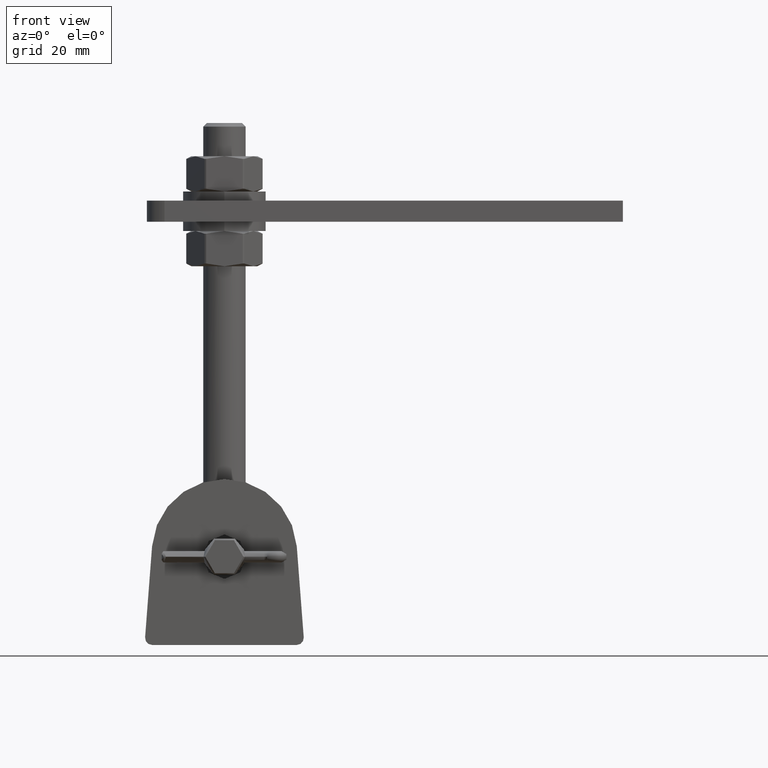
[diagram: clean part render]
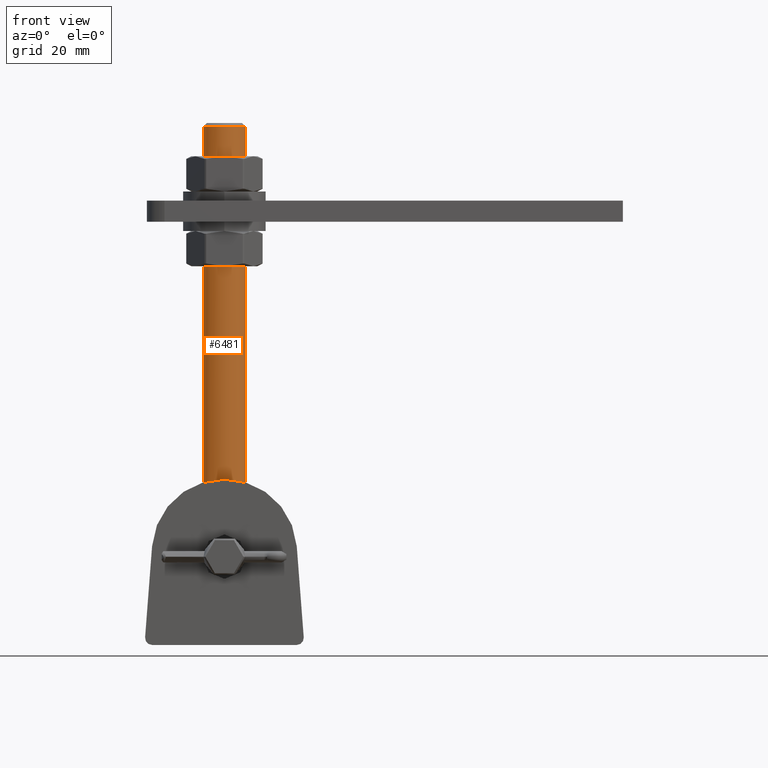
[diagram: same view with one face highlighted and labeled with its STEP entity id]
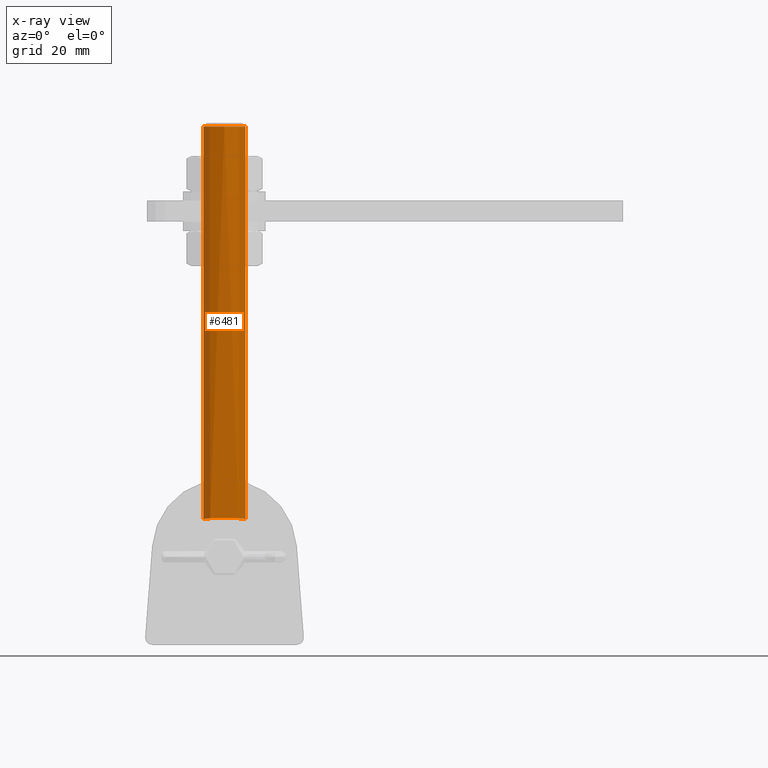
[diagram: x-ray of the same camera — body ghosted, the highlighted face saturated]
A machine part, front view. The second image highlights one B-rep face of the part: STEP entity #6481.
The next image is the same camera in x-ray: the body ghosted, the highlighted face saturated — about 0% of this face is hidden behind the body in this view.
In plain terms, the highlighted cylindrical surface (edge-blend (fillet) strip) has radius 6 mm, axis along (0, 0, 1).
Its self-contained STEP definition (entity closure, byte-faithful):
#291 = ORIENTED_EDGE ( 'NONE', *, *, #9379, .F. ) ;
#363 = CARTESIAN_POINT ( 'NONE',  ( 2.858821212209466722, -5.287978148206013529, 11.13790717393063368 ) ) ;
#403 = EDGE_LOOP ( 'NONE', ( #291, #6014, #16525, #11599, #5409, #16500 ) ) ;
#528 = CARTESIAN_POINT ( 'NONE',  ( -2.012580999801430348, -5.655439151399827225, 11.26503828030744003 ) ) ;
#1176 = CARTESIAN_POINT ( 'NONE',  ( -5.320805270491195671, -2.803786553584363794, 10.58888832320021578 ) ) ;
#1276 = CARTESIAN_POINT ( 'NONE',  ( -4.052886311050992951, -4.424264068711935671, 10.88812013131244250 ) ) ;
#1387 = CARTESIAN_POINT ( 'NONE',  ( -5.113892609555589885, -3.165551226991906386, 10.63463681237543490 ) ) ;
#1669 = CARTESIAN_POINT ( 'NONE',  ( 4.052886311050992951, -4.424264068711936559, 10.88812013131244250 ) ) ;
#1787 = AXIS2_PLACEMENT_3D ( 'NONE', #6663, #4069, #15871 ) ;
#1895 = CARTESIAN_POINT ( 'NONE',  ( 0.7462299686877014171, -5.964967488170382026, 11.37927680154506938 ) ) ;
#2205 = CARTESIAN_POINT ( 'NONE',  ( 4.052886311050992951, -4.424264068711936559, 10.88812013131244250 ) ) ;
#3123 = CARTESIAN_POINT ( 'NONE',  ( -0.3796113927450947001, -5.999783608508001187, 11.39277409428020249 ) ) ;
#3185 = CARTESIAN_POINT ( 'NONE',  ( -2.531332130870001418, -5.452545712510437070, 11.19371147073174555 ) ) ;
#3246 = VECTOR ( 'NONE', #15619, 1000.000000000000000 ) ;
#3570 = CARTESIAN_POINT ( 'NONE',  ( 0.000000000000000000, 0.000000000000000000, 121.9999999999999716 ) ) ;
#3618 = CARTESIAN_POINT ( 'NONE',  ( 4.052886311050992951, -4.424264068711936559, 10.88812013131244250 ) ) ;
#4041 = CARTESIAN_POINT ( 'NONE',  ( 4.627827666096721693, -3.841232835528111345, 10.74998376141880563 ) ) ;
#4069 = DIRECTION ( 'NONE',  ( 0.000000000000000000, 0.000000000000000000, 1.000000000000000000 ) ) ;
#4141 = VERTEX_POINT ( 'NONE', #4438 ) ;
#4289 = CARTESIAN_POINT ( 'NONE',  ( 2.529761871127969908, -5.453326830613871579, 11.19397621253575537 ) ) ;
#4438 = CARTESIAN_POINT ( 'NONE',  ( 6.000000000000000888, 1.467973360395179333E-15, 10.68000468164690986 ) ) ;
#4507 = CARTESIAN_POINT ( 'NONE',  ( -1.476250885711055227, -5.818538449842840521, 11.32438030361830528 ) ) ;
#4737 = EDGE_CURVE ( 'NONE', #9245, #10397, #6972, .T. ) ;
#5100 = EDGE_CURVE ( 'NONE', #4141, #9245, #9860, .T. ) ;
#5152 = CARTESIAN_POINT ( 'NONE',  ( 5.827327076651748428, -1.444365787012909852, 10.54007396654651885 ) ) ;
#5202 = CARTESIAN_POINT ( 'NONE',  ( 6.000000000000000888, 1.467973360395179333E-15, 10.68000468164690986 ) ) ;
#5239 = FACE_OUTER_BOUND ( 'NONE', #403, .T. ) ;
#5333 = CARTESIAN_POINT ( 'NONE',  ( -6.000000000000001776, -0.4156141846890128999, 10.61190313629312953 ) ) ;
#5409 = ORIENTED_EDGE ( 'NONE', *, *, #5100, .T. ) ;
#5846 = CARTESIAN_POINT ( 'NONE',  ( 3.483947210739344325, -4.898743048177221837, 11.01677587378063272 ) ) ;
#6014 = ORIENTED_EDGE ( 'NONE', *, *, #14653, .T. ) ;
#6172 = EDGE_CURVE ( 'NONE', #11524, #4141, #16032, .T. ) ;
#6309 = VECTOR ( 'NONE', #14989, 1000.000000000000000 ) ;
#6475 = CARTESIAN_POINT ( 'NONE',  ( -4.628785364432085991, -3.840176850458395297, 10.74974455852678545 ) ) ;
#6481 = ADVANCED_FACE ( 'NONE', ( #5239 ), #15446, .T. ) ;
#6651 = CARTESIAN_POINT ( 'NONE',  ( -5.656117928453781474, -2.044631444532507114, 10.53687720132760219 ) ) ;
#6663 = CARTESIAN_POINT ( 'NONE',  ( 0.000000000000000000, 0.000000000000000000, -12.25200000000001310 ) ) ;
#6972 = CIRCLE ( 'NONE', #8455, 6.000000000000000888 ) ;
#6979 = CARTESIAN_POINT ( 'NONE',  ( 6.000000000000000888, 0.000000000000000000, -12.25200000000001310 ) ) ;
#7081 = CARTESIAN_POINT ( 'NONE',  ( -1.295692928219341233, -5.861356523483544301, 11.34034151027511506 ) ) ;
#7092 = VERTEX_POINT ( 'NONE', #7122 ) ;
#7122 = CARTESIAN_POINT ( 'NONE',  ( -4.052886311050992951, -4.424264068711935671, 10.88812013131244250 ) ) ;
#7236 = B_SPLINE_CURVE_WITH_KNOTS ( 'NONE', 3,
 ( #10689, #12022, #14981, #15038, #3185, #528, #16387, #4507, #7081, #13826, #3123, #9692, #1895, #12315, #12365, #12472, #16277, #4289, #363, #5846, #9637, #1669 ),
 .UNSPECIFIED., .F., .F.,
 ( 4, 2, 2, 2, 2, 2, 2, 2, 2, 2, 4 ),
 ( 0.004980285782389770252, 0.006095971185357389535, 0.007211656588325007951, 0.007769499289808817592, 0.008327341991292626366, 0.009443027394260249119, 0.01055871279722786840, 0.01111655549871167978, 0.01167439820019548768, 0.01279008360316310697, 0.01390576900613072625 ),
 .UNSPECIFIED. ) ;
#7397 = DIRECTION ( 'NONE',  ( 0.000000000000000000, 0.000000000000000000, -1.000000000000000000 ) ) ;
#7477 = CARTESIAN_POINT ( 'NONE',  ( -6.000000000000000888, 1.734723475976807094E-15, 10.68000468164691164 ) ) ;
#7777 = CARTESIAN_POINT ( 'NONE',  ( -5.957273684027326155, -0.8267433984706858974, 10.56872820745302377 ) ) ;
#7825 = CARTESIAN_POINT ( 'NONE',  ( 4.991058584148644783, -3.336509982085101633, 10.66377732103750198 ) ) ;
#8455 = AXIS2_PLACEMENT_3D ( 'NONE', #3570, #7397, #14146 ) ;
#9158 = CARTESIAN_POINT ( 'NONE',  ( 5.104539526940245153, -3.160161009540882304, 10.63766113593890417 ) ) ;
#9198 = EDGE_CURVE ( 'NONE', #7092, #11524, #7236, .T. ) ;
#9220 = CARTESIAN_POINT ( 'NONE',  ( 5.772833427210424695, -1.648561231873405308, 10.53687368371288180 ) ) ;
#9245 = VERTEX_POINT ( 'NONE', #15385 ) ;
#9379 = EDGE_CURVE ( 'NONE', #11220, #10397, #14854, .T. ) ;
#9536 = CARTESIAN_POINT ( 'NONE',  ( -6.000000000000000888, 7.347880794884120722E-16, 121.9999999999999716 ) ) ;
#9637 = CARTESIAN_POINT ( 'NONE',  ( 3.781845092049720858, -4.672553779533977547, 10.95116229065379265 ) ) ;
#9692 = CARTESIAN_POINT ( 'NONE',  ( 0.3727398869709601659, -6.000214424092193966, 11.39293943636848105 ) ) ;
#9860 = LINE ( 'NONE', #6979, #6309 ) ;
#10397 = VERTEX_POINT ( 'NONE', #9536 ) ;
#10689 = CARTESIAN_POINT ( 'NONE',  ( -4.052886311050992951, -4.424264068711935671, 10.88812013131244250 ) ) ;
#11220 = VERTEX_POINT ( 'NONE', #7477 ) ;
#11492 = CARTESIAN_POINT ( 'NONE',  ( 5.310402471045697403, -2.800458352454029853, 10.59391273257077337 ) ) ;
#11520 = CARTESIAN_POINT ( 'NONE',  ( -6.000000000000000888, 7.347880794884120722E-16, -12.25200000000001310 ) ) ;
#11524 = VERTEX_POINT ( 'NONE', #3618 ) ;
#11599 = ORIENTED_EDGE ( 'NONE', *, *, #6172, .T. ) ;
#12022 = CARTESIAN_POINT ( 'NONE',  ( -3.781344950840408448, -4.673011938321366188, 10.95127861975652372 ) ) ;
#12315 = CARTESIAN_POINT ( 'NONE',  ( 1.293218280457317348, -5.861911851466667933, 11.34054880119874298 ) ) ;
#12365 = CARTESIAN_POINT ( 'NONE',  ( 1.473853799219136951, -5.819141181988702449, 11.32460367283993641 ) ) ;
#12472 = CARTESIAN_POINT ( 'NONE',  ( 1.831735866427572690, -5.716589265727630043, 11.28709110904715196 ) ) ;
#13060 = CARTESIAN_POINT ( 'NONE',  ( -6.000000000000000888, 1.734723475976807094E-15, 10.68000468164691164 ) ) ;
#13100 = CARTESIAN_POINT ( 'NONE',  ( 6.000000000000003553, -0.4159779150605588671, 10.61184353630519261 ) ) ;
#13154 = CARTESIAN_POINT ( 'NONE',  ( 5.403592857062914590, -2.616076296649992639, 10.57608202782594020 ) ) ;
#13826 = CARTESIAN_POINT ( 'NONE',  ( -0.7495767706160291199, -5.964513098605422670, 11.37910327557075263 ) ) ;
#14146 = DIRECTION ( 'NONE',  ( 1.000000000000000000, 0.000000000000000000, 0.000000000000000000 ) ) ;
#14239 = CARTESIAN_POINT ( 'NONE',  ( 4.355415515859348830, -4.147129509422868843, 10.81775410209660571 ) ) ;
#14631 = CARTESIAN_POINT ( 'NONE',  ( -5.786468881786184681, -1.639936667508688162, 10.53084344153300833 ) ) ;
#14653 = EDGE_CURVE ( 'NONE', #11220, #7092, #16064, .T. ) ;
#14670 = CARTESIAN_POINT ( 'NONE',  ( 5.957205704254485035, -0.8291162385853740879, 10.56838410182564481 ) ) ;
#14854 = LINE ( 'NONE', #11520, #3246 ) ;
#14981 = CARTESIAN_POINT ( 'NONE',  ( -3.483565745634146893, -4.898959578845441420, 11.01684574927956639 ) ) ;
#14989 = DIRECTION ( 'NONE',  ( 0.000000000000000000, 0.000000000000000000, 1.000000000000000000 ) ) ;
#15038 = CARTESIAN_POINT ( 'NONE',  ( -2.859696389336796152, -5.287454190830516154, 11.13774162815434288 ) ) ;
#15385 = CARTESIAN_POINT ( 'NONE',  ( 6.000000000000000888, 0.000000000000000000, 121.9999999999999716 ) ) ;
#15446 = CYLINDRICAL_SURFACE ( 'NONE', #1787, 6.000000000000000888 ) ;
#15619 = DIRECTION ( 'NONE',  ( 0.000000000000000000, 0.000000000000000000, 1.000000000000000000 ) ) ;
#15852 = CARTESIAN_POINT ( 'NONE',  ( 5.570718808316721393, -2.238249966706488792, 10.55008912204307592 ) ) ;
#15871 = DIRECTION ( 'NONE',  ( 1.000000000000000000, 0.000000000000000000, 0.000000000000000000 ) ) ;
#15972 = CARTESIAN_POINT ( 'NONE',  ( 5.644654850823313197, -2.044805988017164733, 10.54192556694422400 ) ) ;
#15985 = CARTESIAN_POINT ( 'NONE',  ( -4.355906172907242357, -4.146680038685603087, 10.81763997893884621 ) ) ;
#16032 = B_SPLINE_CURVE_WITH_KNOTS ( 'NONE', 3,
 ( #2205, #14239, #4041, #7825, #9158, #11492, #13154, #15852, #15972, #9220, #5152, #14670, #13100, #5202 ),
 .UNSPECIFIED., .F., .F.,
 ( 4, 2, 2, 2, 2, 2, 4 ),
 ( 0.01390576900613072625, 0.01515106822305352548, 0.01577371783151492596, 0.01639636743997632470, 0.01701901704843772345, 0.01764166665689912566, 0.01888696587382192316 ),
 .UNSPECIFIED. ) ;
#16064 = B_SPLINE_CURVE_WITH_KNOTS ( 'NONE', 3,
 ( #13060, #5333, #7777, #14631, #6651, #1176, #1387, #6475, #15985, #1276 ),
 .UNSPECIFIED., .F., .F.,
 ( 4, 2, 2, 2, 4 ),
 ( 1.997075450114258867E-07, 0.001245221226256201189, 0.002490242744967390877, 0.003735264263678580565, 0.004980285782389770252 ),
 .UNSPECIFIED. ) ;
#16277 = CARTESIAN_POINT ( 'NONE',  ( 2.009851619341100903, -5.656422334811862740, 11.26538889618768202 ) ) ;
#16387 = CARTESIAN_POINT ( 'NONE',  ( -1.834383582039287308, -5.715745204591167195, 11.28678529540500719 ) ) ;
#16500 = ORIENTED_EDGE ( 'NONE', *, *, #4737, .T. ) ;
#16525 = ORIENTED_EDGE ( 'NONE', *, *, #9198, .T. ) ;